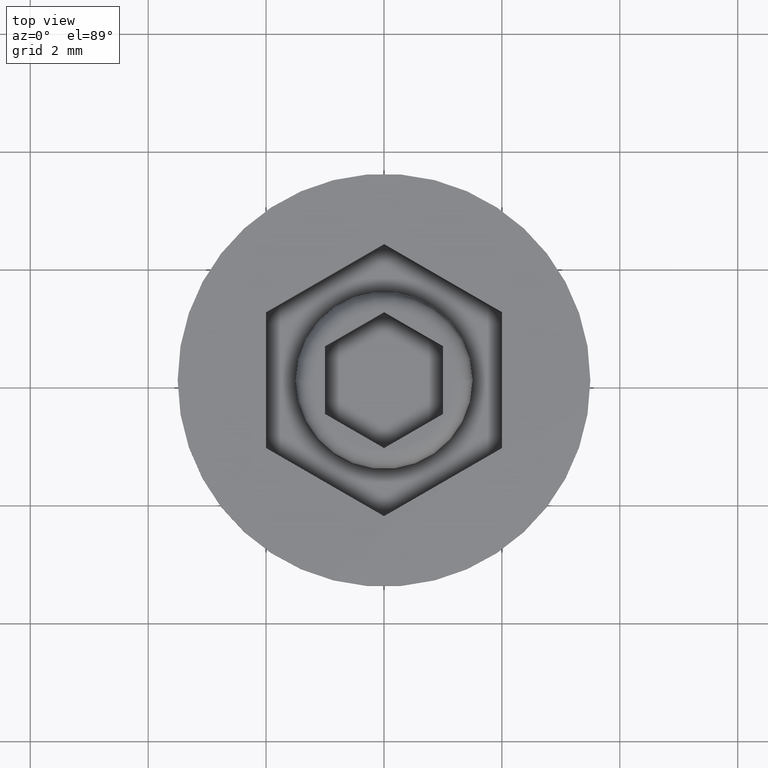
[diagram: clean part render]
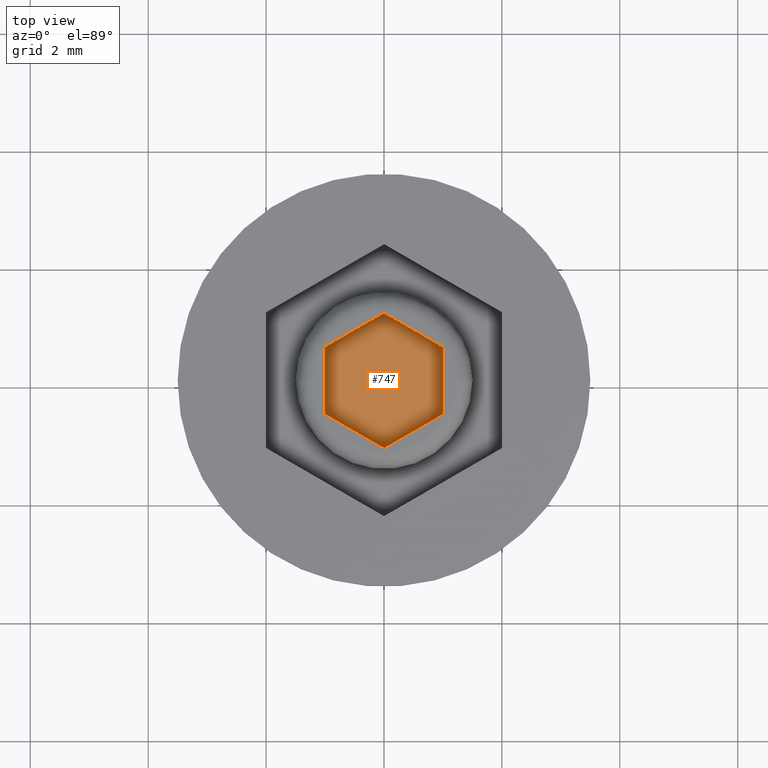
[diagram: same view with one face highlighted and labeled with its STEP entity id]
A machine part, top view. The second image highlights one B-rep face of the part: STEP entity #747.
In plain terms, the highlighted planar face has unit normal (0, 0, 1).
Its self-contained STEP definition (entity closure, byte-faithful):
#58 = AXIS2_PLACEMENT_3D ( 'NONE', #1270, #836, #1144 ) ;
#72 = LINE ( 'NONE', #1760, #1745 ) ;
#102 = EDGE_CURVE ( 'NONE', #1776, #1783, #489, .T. ) ;
#113 = CARTESIAN_POINT ( 'NONE',  ( -1.000000000000000222, 0.5773502691896259531, -1.000000000000000000 ) ) ;
#143 = CARTESIAN_POINT ( 'NONE',  ( 0.000000000000000000, 1.154700538379251684, -1.000000000000000000 ) ) ;
#159 = DIRECTION ( 'NONE',  ( -0.8660254037844388186, -0.4999999999999998335, 0.000000000000000000 ) ) ;
#278 = ORIENTED_EDGE ( 'NONE', *, *, #1452, .F. ) ;
#376 = VECTOR ( 'NONE', #456, 1000.000000000000114 ) ;
#391 = CARTESIAN_POINT ( 'NONE',  ( -2.168404344971008868E-16, -1.154700538379251684, -1.000000000000000000 ) ) ;
#393 = CARTESIAN_POINT ( 'NONE',  ( 1.000000000000000666, 0.5773502691896258421, -1.000000000000000000 ) ) ;
#448 = CARTESIAN_POINT ( 'NONE',  ( 1.000000000000000666, 0.5773502691896258421, -1.000000000000000000 ) ) ;
#456 = DIRECTION ( 'NONE',  ( -0.8660254037844385966, 0.4999999999999999445, 0.000000000000000000 ) ) ;
#489 = LINE ( 'NONE', #1194, #376 ) ;
#510 = CARTESIAN_POINT ( 'NONE',  ( 0.000000000000000000, 1.154700538379251684, -1.000000000000000000 ) ) ;
#576 = ORIENTED_EDGE ( 'NONE', *, *, #102, .F. ) ;
#621 = EDGE_CURVE ( 'NONE', #1783, #1758, #1371, .T. ) ;
#649 = CARTESIAN_POINT ( 'NONE',  ( -1.000000000000000222, -0.5773502691896259531, -1.000000000000000000 ) ) ;
#676 = PLANE ( 'NONE',  #58 ) ;
#691 = CARTESIAN_POINT ( 'NONE',  ( 1.000000000000000222, -0.5773502691896260641, -1.000000000000000000 ) ) ;
#699 = DIRECTION ( 'NONE',  ( 0.8660254037844387076, 0.4999999999999998890, -0.000000000000000000 ) ) ;
#702 = CARTESIAN_POINT ( 'NONE',  ( 0.000000000000000000, -1.154700538379251684, -1.000000000000000000 ) ) ;
#704 = VECTOR ( 'NONE', #699, 1000.000000000000000 ) ;
#747 = ADVANCED_FACE ( 'NONE', ( #1363 ), #676, .T. ) ;
#836 = DIRECTION ( 'NONE',  ( 0.000000000000000000, 0.000000000000000000, 1.000000000000000000 ) ) ;
#947 = DIRECTION ( 'NONE',  ( 0.8660254037844388186, -0.4999999999999998335, 0.000000000000000000 ) ) ;
#967 = VECTOR ( 'NONE', #947, 999.9999999999998863 ) ;
#979 = LINE ( 'NONE', #143, #704 ) ;
#1046 = DIRECTION ( 'NONE',  ( -3.755786496842897085E-16, -1.000000000000000000, 0.000000000000000000 ) ) ;
#1090 = LINE ( 'NONE', #393, #967 ) ;
#1113 = VECTOR ( 'NONE', #1491, 1000.000000000000000 ) ;
#1117 = VECTOR ( 'NONE', #159, 999.9999999999998863 ) ;
#1144 = DIRECTION ( 'NONE',  ( 1.000000000000000000, 0.000000000000000000, -0.000000000000000000 ) ) ;
#1194 = CARTESIAN_POINT ( 'NONE',  ( -1.000000000000000222, -0.5773502691896257311, -1.000000000000000000 ) ) ;
#1197 = VERTEX_POINT ( 'NONE', #691 ) ;
#1198 = CARTESIAN_POINT ( 'NONE',  ( -1.000000000000000222, 0.5773502691896259531, -1.000000000000000000 ) ) ;
#1218 = EDGE_CURVE ( 'NONE', #1197, #1776, #1419, .T. ) ;
#1270 = CARTESIAN_POINT ( 'NONE',  ( 0.000000000000000000, 0.000000000000000000, -1.000000000000000000 ) ) ;
#1277 = EDGE_LOOP ( 'NONE', ( #278, #1402, #1757, #576, #1517, #1775 ) ) ;
#1334 = EDGE_CURVE ( 'NONE', #1712, #1197, #72, .T. ) ;
#1363 = FACE_OUTER_BOUND ( 'NONE', #1277, .T. ) ;
#1371 = LINE ( 'NONE', #113, #1113 ) ;
#1402 = ORIENTED_EDGE ( 'NONE', *, *, #1540, .F. ) ;
#1409 = VERTEX_POINT ( 'NONE', #510 ) ;
#1419 = LINE ( 'NONE', #702, #1117 ) ;
#1452 = EDGE_CURVE ( 'NONE', #1409, #1712, #1090, .T. ) ;
#1491 = DIRECTION ( 'NONE',  ( 0.000000000000000000, 1.000000000000000000, 0.000000000000000000 ) ) ;
#1517 = ORIENTED_EDGE ( 'NONE', *, *, #1218, .F. ) ;
#1540 = EDGE_CURVE ( 'NONE', #1758, #1409, #979, .T. ) ;
#1712 = VERTEX_POINT ( 'NONE', #448 ) ;
#1745 = VECTOR ( 'NONE', #1046, 1000.000000000000000 ) ;
#1757 = ORIENTED_EDGE ( 'NONE', *, *, #621, .F. ) ;
#1758 = VERTEX_POINT ( 'NONE', #1198 ) ;
#1760 = CARTESIAN_POINT ( 'NONE',  ( 1.000000000000000222, -0.5773502691896260641, -1.000000000000000000 ) ) ;
#1775 = ORIENTED_EDGE ( 'NONE', *, *, #1334, .F. ) ;
#1776 = VERTEX_POINT ( 'NONE', #391 ) ;
#1783 = VERTEX_POINT ( 'NONE', #649 ) ;